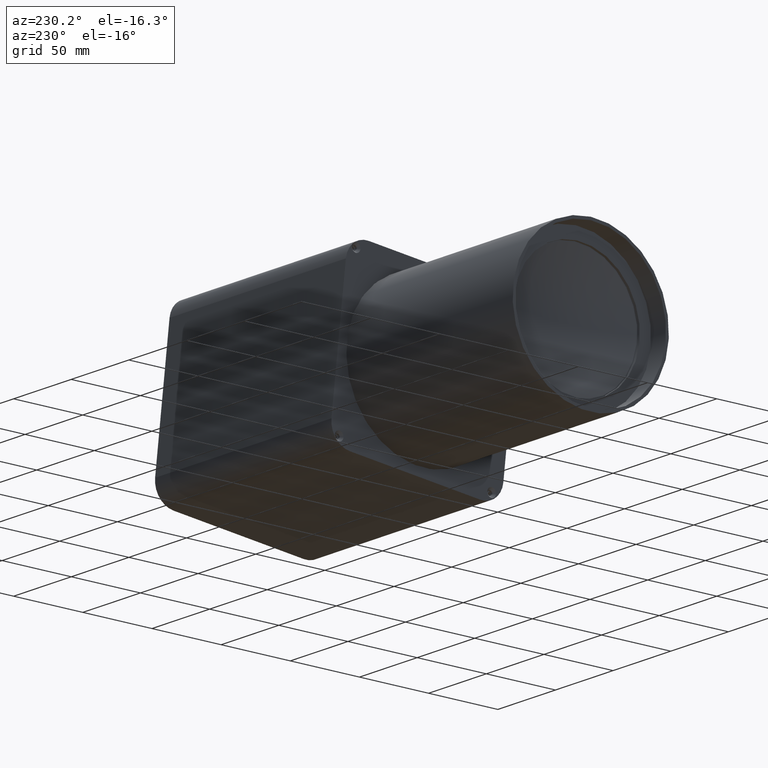
[diagram: clean part render]
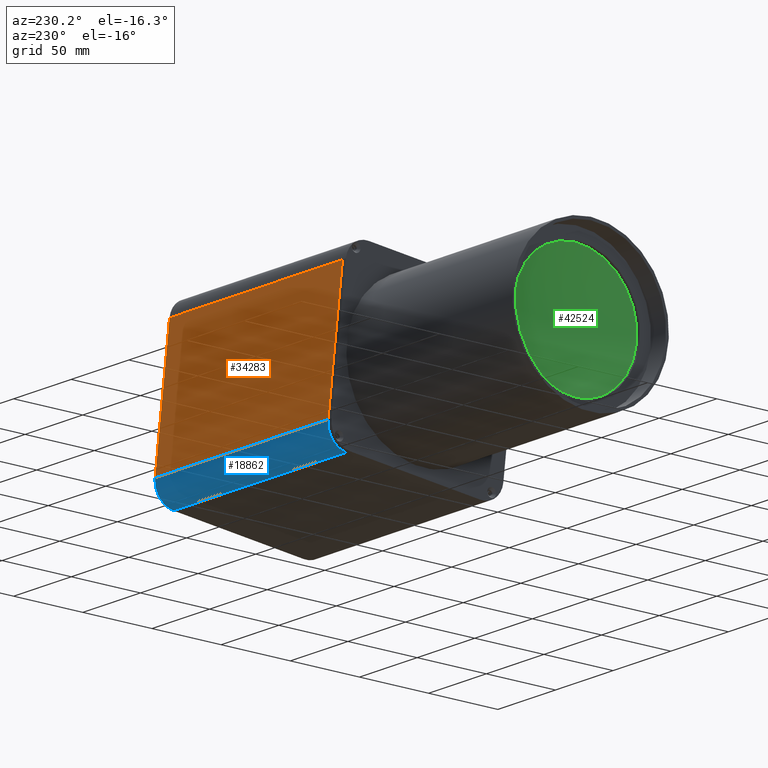
[diagram: same view with three faces highlighted in distinct colors, each labeled with its STEP entity id]
A machine part, auxiliary view with three faces highlighted in distinct colors.
Their STEP definitions:

[orange] entity #34283 — the highlighted planar face has unit normal (0, -0.994, -0.1096).
#128 = DIRECTION ( 'NONE',  ( 1.000000000000000000, 3.741578115183051394E-17, 3.335034143899465079E-17 ) ) ;
#145 = DIRECTION ( 'NONE',  ( 2.904723196013996198E-17, 0.1096347956398122797, -0.9939719370208680571 ) ) ;
#755 = EDGE_CURVE ( 'NONE', #12710, #2659, #33935, .T. ) ;
#2659 = VERTEX_POINT ( 'NONE', #26594 ) ;
#2729 = CARTESIAN_POINT ( 'NONE',  ( 6.465102322793465639, 67.33089885669528485, -40.36149228100295971 ) ) ;
#2771 = CARTESIAN_POINT ( 'NONE',  ( -143.5348976772065441, 56.91559327091311360, 54.06584173597948961 ) ) ;
#3546 = ORIENTED_EDGE ( 'NONE', *, *, #34265, .T. ) ;
#11892 = CARTESIAN_POINT ( 'NONE',  ( 6.465102322793463863, 62.12324606380420278, 6.852174727488267614 ) ) ;
#12710 = VERTEX_POINT ( 'NONE', #23173 ) ;
#15510 = DIRECTION ( 'NONE',  ( 4.084659433481600848E-17, -0.9939719370208681681, -0.1096347956398122936 ) ) ;
#15585 = CARTESIAN_POINT ( 'NONE',  ( -143.5348976772065441, 62.12324606380419567, 6.852174727488262285 ) ) ;
#18201 = LINE ( 'NONE', #11892, #42144 ) ;
#18269 = AXIS2_PLACEMENT_3D ( 'NONE', #26624, #15510, #26379 ) ;
#19065 = ORIENTED_EDGE ( 'NONE', *, *, #755, .F. ) ;
#22876 = VECTOR ( 'NONE', #128, 1000.000000000000000 ) ;
#23173 = CARTESIAN_POINT ( 'NONE',  ( -143.5348976772065441, 56.91559327091311360, 54.06584173597948961 ) ) ;
#26379 = DIRECTION ( 'NONE',  ( 1.000000000000000000, 3.741578115183051394E-17, 3.335034143899465079E-17 ) ) ;
#26594 = CARTESIAN_POINT ( 'NONE',  ( -143.5348976772065441, 67.33089885669528485, -40.36149228100296682 ) ) ;
#26624 = CARTESIAN_POINT ( 'NONE',  ( -143.5348976772065441, 68.97542079129247838, -55.27107133631599112 ) ) ;
#28236 = VECTOR ( 'NONE', #39473, 1000.000000000000000 ) ;
#28313 = EDGE_CURVE ( 'NONE', #36908, #12710, #32241, .T. ) ;
#28364 = ORIENTED_EDGE ( 'NONE', *, *, #28313, .F. ) ;
#31924 = CARTESIAN_POINT ( 'NONE',  ( 6.465102322793462086, 56.91559327091312070, 54.06584173597949672 ) ) ;
#32241 = LINE ( 'NONE', #2771, #28236 ) ;
#33200 = CARTESIAN_POINT ( 'NONE',  ( -143.5348976772065441, 67.33089885669528485, -40.36149228100296682 ) ) ;
#33841 = EDGE_CURVE ( 'NONE', #2659, #46668, #36817, .T. ) ;
#33935 = LINE ( 'NONE', #15585, #39863 ) ;
#34265 = EDGE_CURVE ( 'NONE', #36908, #46668, #18201, .T. ) ;
#34283 = ADVANCED_FACE ( 'NONE', ( #40646 ), #44722, .F. ) ;
#36817 = LINE ( 'NONE', #33200, #22876 ) ;
#36908 = VERTEX_POINT ( 'NONE', #31924 ) ;
#37125 = ORIENTED_EDGE ( 'NONE', *, *, #33841, .F. ) ;
#39473 = DIRECTION ( 'NONE',  ( -1.000000000000000000, -3.741578115183051394E-17, -3.335034143899465079E-17 ) ) ;
#39863 = VECTOR ( 'NONE', #145, 1000.000000000000114 ) ;
#40646 = FACE_OUTER_BOUND ( 'NONE', #40979, .T. ) ;
#40979 = EDGE_LOOP ( 'NONE', ( #28364, #3546, #37125, #19065 ) ) ;
#42144 = VECTOR ( 'NONE', #44242, 1000.000000000000114 ) ;
#44242 = DIRECTION ( 'NONE',  ( 2.904723196013996198E-17, 0.1096347956398122797, -0.9939719370208680571 ) ) ;
#44722 = PLANE ( 'NONE',  #18269 ) ;
#46668 = VERTEX_POINT ( 'NONE', #2729 ) ;

[blue] entity #18862 — the highlighted cylindrical surface (edge-blend (fillet) strip) has radius 15 mm, axis along (1, 0, 0).
#128 = DIRECTION ( 'NONE',  ( 1.000000000000000000, 3.741578115183051394E-17, 3.335034143899465079E-17 ) ) ;
#606 = ORIENTED_EDGE ( 'NONE', *, *, #5192, .T. ) ;
#768 = CYLINDRICAL_SURFACE ( 'NONE', #38798, 15.00000000000000355 ) ;
#1147 = CIRCLE ( 'NONE', #28140, 15.00000000000000355 ) ;
#2659 = VERTEX_POINT ( 'NONE', #26594 ) ;
#2729 = CARTESIAN_POINT ( 'NONE',  ( 6.465102322793465639, 67.33089885669528485, -40.36149228100295971 ) ) ;
#3227 = CARTESIAN_POINT ( 'NONE',  ( -143.5348976772065441, 54.06584173597943987, -56.91559327091318465 ) ) ;
#5192 = EDGE_CURVE ( 'NONE', #7231, #10029, #7819, .T. ) ;
#6329 = EDGE_CURVE ( 'NONE', #2659, #10029, #1147, .T. ) ;
#7231 = VERTEX_POINT ( 'NONE', #9389 ) ;
#7819 = LINE ( 'NONE', #36794, #10347 ) ;
#9389 = CARTESIAN_POINT ( 'NONE',  ( 6.465102322793466527, 54.06584173597944698, -56.91559327091317755 ) ) ;
#10029 = VERTEX_POINT ( 'NONE', #3227 ) ;
#10347 = VECTOR ( 'NONE', #25698, 1000.000000000000000 ) ;
#12126 = DIRECTION ( 'NONE',  ( 1.000000000000000000, 3.741578115183051394E-17, 3.335034143899465079E-17 ) ) ;
#17538 = ORIENTED_EDGE ( 'NONE', *, *, #6329, .F. ) ;
#18862 = ADVANCED_FACE ( 'NONE', ( #19139 ), #768, .T. ) ;
#18872 = CIRCLE ( 'NONE', #23486, 14.99999999999999645 ) ;
#19139 = FACE_OUTER_BOUND ( 'NONE', #39375, .T. ) ;
#19372 = CARTESIAN_POINT ( 'NONE',  ( -143.5348976772065441, 52.42131980138226055, -42.00601421560016036 ) ) ;
#20007 = ORIENTED_EDGE ( 'NONE', *, *, #31330, .T. ) ;
#20146 = CARTESIAN_POINT ( 'NONE',  ( -143.5348976772065441, 52.42131980138226055, -42.00601421560016036 ) ) ;
#22876 = VECTOR ( 'NONE', #128, 1000.000000000000000 ) ;
#23486 = AXIS2_PLACEMENT_3D ( 'NONE', #25520, #30088, #37577 ) ;
#25520 = CARTESIAN_POINT ( 'NONE',  ( 6.465102322793465639, 52.42131980138226766, -42.00601421560015325 ) ) ;
#25698 = DIRECTION ( 'NONE',  ( -1.000000000000000000, -3.741578115183051394E-17, -3.335034143899465079E-17 ) ) ;
#26594 = CARTESIAN_POINT ( 'NONE',  ( -143.5348976772065441, 67.33089885669528485, -40.36149228100296682 ) ) ;
#28140 = AXIS2_PLACEMENT_3D ( 'NONE', #20146, #30267, #34618 ) ;
#29558 = ORIENTED_EDGE ( 'NONE', *, *, #33841, .T. ) ;
#30088 = DIRECTION ( 'NONE',  ( -1.000000000000000000, -3.741578115183051394E-17, -3.335034143899465079E-17 ) ) ;
#30267 = DIRECTION ( 'NONE',  ( -1.000000000000000000, -3.741578115183051394E-17, -3.335034143899465079E-17 ) ) ;
#30702 = DIRECTION ( 'NONE',  ( 0.000000000000000000, 0.1096347956398124601, -0.9939719370208680571 ) ) ;
#31330 = EDGE_CURVE ( 'NONE', #46668, #7231, #18872, .T. ) ;
#33200 = CARTESIAN_POINT ( 'NONE',  ( -143.5348976772065441, 67.33089885669528485, -40.36149228100296682 ) ) ;
#33841 = EDGE_CURVE ( 'NONE', #2659, #46668, #36817, .T. ) ;
#34618 = DIRECTION ( 'NONE',  ( 0.000000000000000000, 0.1096347956398129181, -0.9939719370208680571 ) ) ;
#36794 = CARTESIAN_POINT ( 'NONE',  ( -143.5348976772065441, 54.06584173597943987, -56.91559327091318465 ) ) ;
#36817 = LINE ( 'NONE', #33200, #22876 ) ;
#37577 = DIRECTION ( 'NONE',  ( 5.782411586589358625E-17, 0.1096347956398129736, -0.9939719370208680571 ) ) ;
#38798 = AXIS2_PLACEMENT_3D ( 'NONE', #19372, #12126, #30702 ) ;
#39375 = EDGE_LOOP ( 'NONE', ( #20007, #606, #17538, #29558 ) ) ;
#46668 = VERTEX_POINT ( 'NONE', #2729 ) ;

[green] entity #42524 — the highlighted spherical surface has radius 112.8 mm.
#653 = EDGE_LOOP ( 'NONE', ( #44835 ) ) ;
#1684 = SPHERICAL_SURFACE ( 'NONE', #36503, 112.7999999999994287 ) ;
#2406 = FACE_OUTER_BOUND ( 'NONE', #653, .T. ) ;
#10838 = VERTEX_POINT ( 'NONE', #14003 ) ;
#13289 = CARTESIAN_POINT ( 'NONE',  ( -380.1209053130385200, -1.302177097995155527E-14, 3.622092208205109565E-14 ) ) ;
#14003 = CARTESIAN_POINT ( 'NONE',  ( -276.6857082087651634, 29.56210895551247475, 33.92759517122315316 ) ) ;
#14975 = AXIS2_PLACEMENT_3D ( 'NONE', #41851, #35333, #30505 ) ;
#19833 = DIRECTION ( 'NONE',  ( 1.000000000000000000, 3.748930923605932849E-14, 4.303931980505656827E-14 ) ) ;
#20792 = DIRECTION ( 'NONE',  ( 5.707741473542344854E-14, -0.6569357545669451959, -0.7539465593605149119 ) ) ;
#30505 = DIRECTION ( 'NONE',  ( 0.000000000000000000, 0.6569357545669451959, 0.7539465593605149119 ) ) ;
#35333 = DIRECTION ( 'NONE',  ( 1.000000000000000000, -2.420481350073888957E-17, -1.387778780781445984E-17 ) ) ;
#36503 = AXIS2_PLACEMENT_3D ( 'NONE', #13289, #20792, #19833 ) ;
#40992 = EDGE_CURVE ( 'NONE', #10838, #10838, #43415, .T. ) ;
#41851 = CARTESIAN_POINT ( 'NONE',  ( -276.6857082087651634, -1.552540063527265881E-14, 3.478547036477852566E-14 ) ) ;
#42524 = ADVANCED_FACE ( 'NONE', ( #2406 ), #1684, .F. ) ;
#43415 = CIRCLE ( 'NONE', #14975, 44.99999999999992895 ) ;
#44835 = ORIENTED_EDGE ( 'NONE', *, *, #40992, .F. ) ;